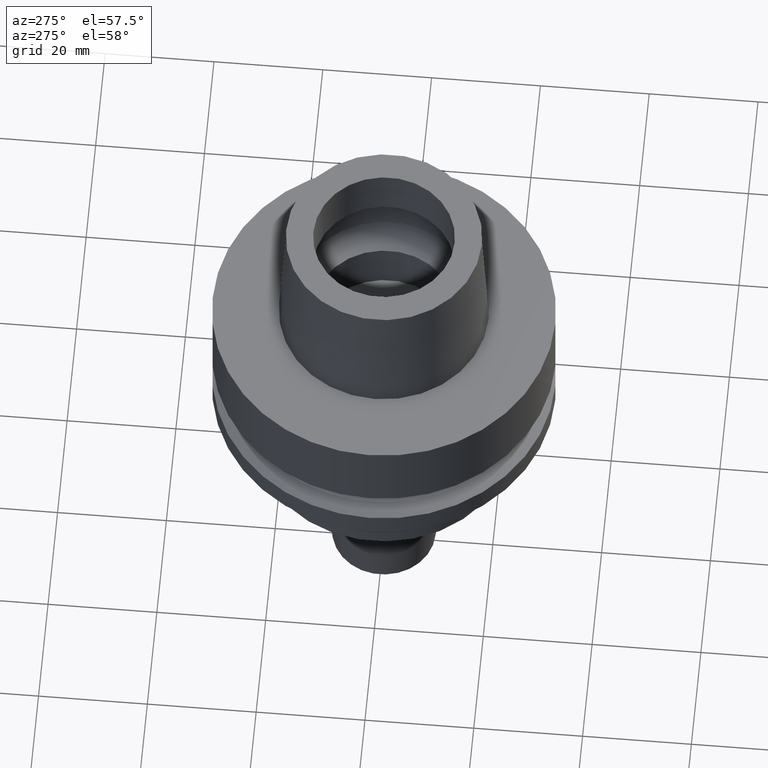
[diagram: clean part render]
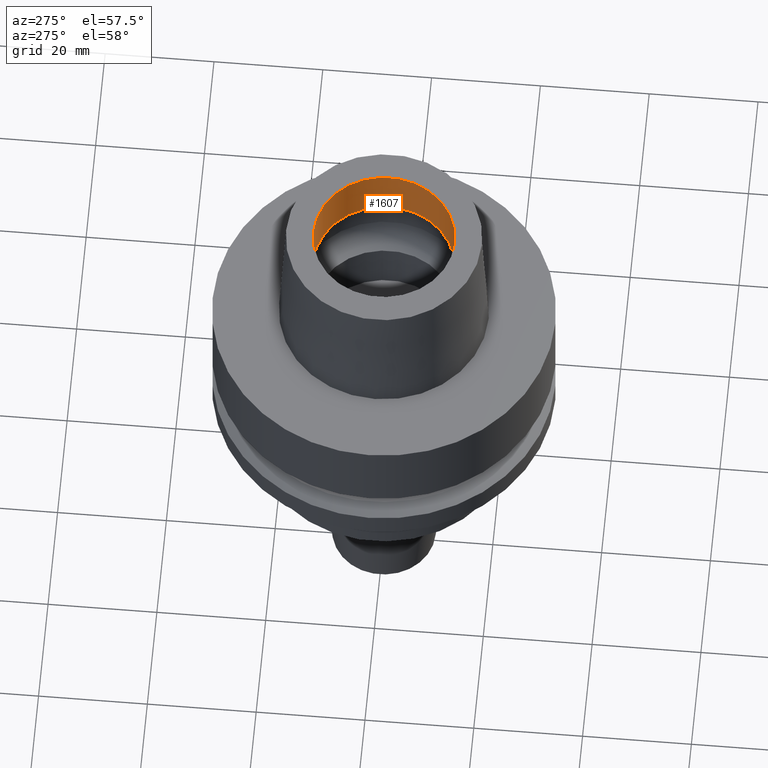
[diagram: same view with one face highlighted and labeled with its STEP entity id]
A machine part, auxiliary view. The second image highlights one B-rep face of the part: STEP entity #1607.
In plain terms, the highlighted cylindrical surface (partial cylindrical patch) has radius 13 mm, axis along (0, 0, -1).
Its self-contained STEP definition (entity closure, byte-faithful):
#34=CARTESIAN_POINT('',(0.E0,0.E0,2.5E1));
#35=DIRECTION('',(0.E0,0.E0,1.E0));
#36=DIRECTION('',(0.E0,-1.E0,0.E0));
#37=AXIS2_PLACEMENT_3D('',#34,#35,#36);
#750=CARTESIAN_POINT('',(0.E0,0.E0,1.499602540378E1));
#751=DIRECTION('',(0.E0,0.E0,-1.E0));
#752=DIRECTION('',(0.E0,1.E0,0.E0));
#753=AXIS2_PLACEMENT_3D('',#750,#751,#752);
#766=DIRECTION('',(0.E0,-9.659541928455E-14,1.E0));
#767=VECTOR('',#766,1.000397459622E1);
#768=CARTESIAN_POINT('',(0.E0,1.3E1,1.499602540378E1));
#769=LINE('',#768,#767);
#773=DIRECTION('',(0.E0,9.659541928455E-14,1.E0));
#774=VECTOR('',#773,1.000397459622E1);
#775=CARTESIAN_POINT('',(0.E0,-1.3E1,1.499602540378E1));
#776=LINE('',#775,#774);
#784=CARTESIAN_POINT('',(0.E0,-1.3E1,2.5E1));
#785=CARTESIAN_POINT('',(0.E0,1.3E1,2.5E1));
#786=VERTEX_POINT('',#784);
#787=VERTEX_POINT('',#785);
#788=CARTESIAN_POINT('',(0.E0,1.3E1,1.499602540378E1));
#789=VERTEX_POINT('',#788);
#790=CARTESIAN_POINT('',(0.E0,-1.3E1,1.499602540378E1));
#791=VERTEX_POINT('',#790);
#1594=CARTESIAN_POINT('',(0.E0,0.E0,3.E1));
#1595=DIRECTION('',(0.E0,0.E0,-1.E0));
#1596=DIRECTION('',(0.E0,-1.E0,0.E0));
#1597=AXIS2_PLACEMENT_3D('',#1594,#1595,#1596);
#1598=CYLINDRICAL_SURFACE('',#1597,1.3E1);
#1600=ORIENTED_EDGE('',*,*,#1599,.T.);
#1601=ORIENTED_EDGE('',*,*,#911,.F.);
#1603=ORIENTED_EDGE('',*,*,#1602,.F.);
#1604=ORIENTED_EDGE('',*,*,#1587,.F.);
#1605=EDGE_LOOP('',(#1600,#1601,#1603,#1604));
#1606=FACE_OUTER_BOUND('',#1605,.F.);
#38=CIRCLE('',#37,1.3E1);
#754=CIRCLE('',#753,1.3E1);
#911=EDGE_CURVE('',#786,#787,#38,.T.);
#1587=EDGE_CURVE('',#789,#791,#754,.T.);
#1599=EDGE_CURVE('',#789,#787,#769,.T.);
#1602=EDGE_CURVE('',#791,#786,#776,.T.);
#1607=ADVANCED_FACE('',(#1606),#1598,.F.);